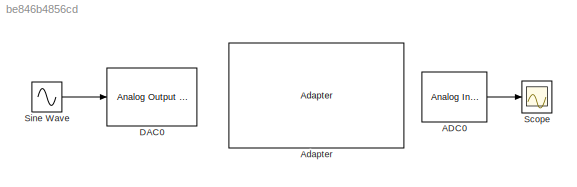
MODEL slx_be846b4856cd
KIND model
CONFIG AbsTol = auto
CONFIG EnableMultiTasking = off
CONFIG FixedStep = auto
CONFIG MaxStep = auto
CONFIG MinStep = auto
CONFIG RelTol = 1e-3
CONFIG SampleTimeConstraint = Unconstrained
CONFIG Solver = ode3
CONFIG SolverName = ode3
CONFIG StartTime = 0.0
CONFIG StopTime = 10.0
BLOCK [Reference] ADC0  REF=Rayannik/Analog Input
  Ports = [0, 1]
  Priority = 2
  SourceBlock = Rayannik/Analog Input
  SourceType = Analog Input
BLOCK [Reference] Adapter  REF=Rayannik/Adapter
  Ports = []
  SourceBlock = Rayannik/Adapter
BLOCK [Reference] DAC0  REF=Rayannik/Analog Output CH0
  Ports = [1]
  Priority = 2
  SourceBlock = Rayannik/Analog Output CH0
  SourceType = Analog Output
BLOCK [Scope] Scope
  NumInputPorts = 1
  Ports = [1]
  ScopeSpecificationString = Simulink.scopes.TimeScopeBlockCfg('CurrentConfiguration', extmgr.ConfigurationSet(extmgr.Configuration('Core','General UI',true),extmgr.Configuration('Core','Source UI',true),extmgr.Configuration('Sources','WiredSimulink',true,'DataLoggingSaveFormat','StructureWithTime','DataLoggingLimitDataPoints',true,'DataLoggingDecimateData',true),extmgr.Configuration('Visuals','Time Domain',true,'SerializedDi...<+1616ch>
BLOCK [Sin] Sine Wave
  Frequency = 5
  Ports = [0, 1]
  SampleTime = 0
LINE ADC0:1 -> Scope:1
LINE Sine Wave:1 -> DAC0:1
